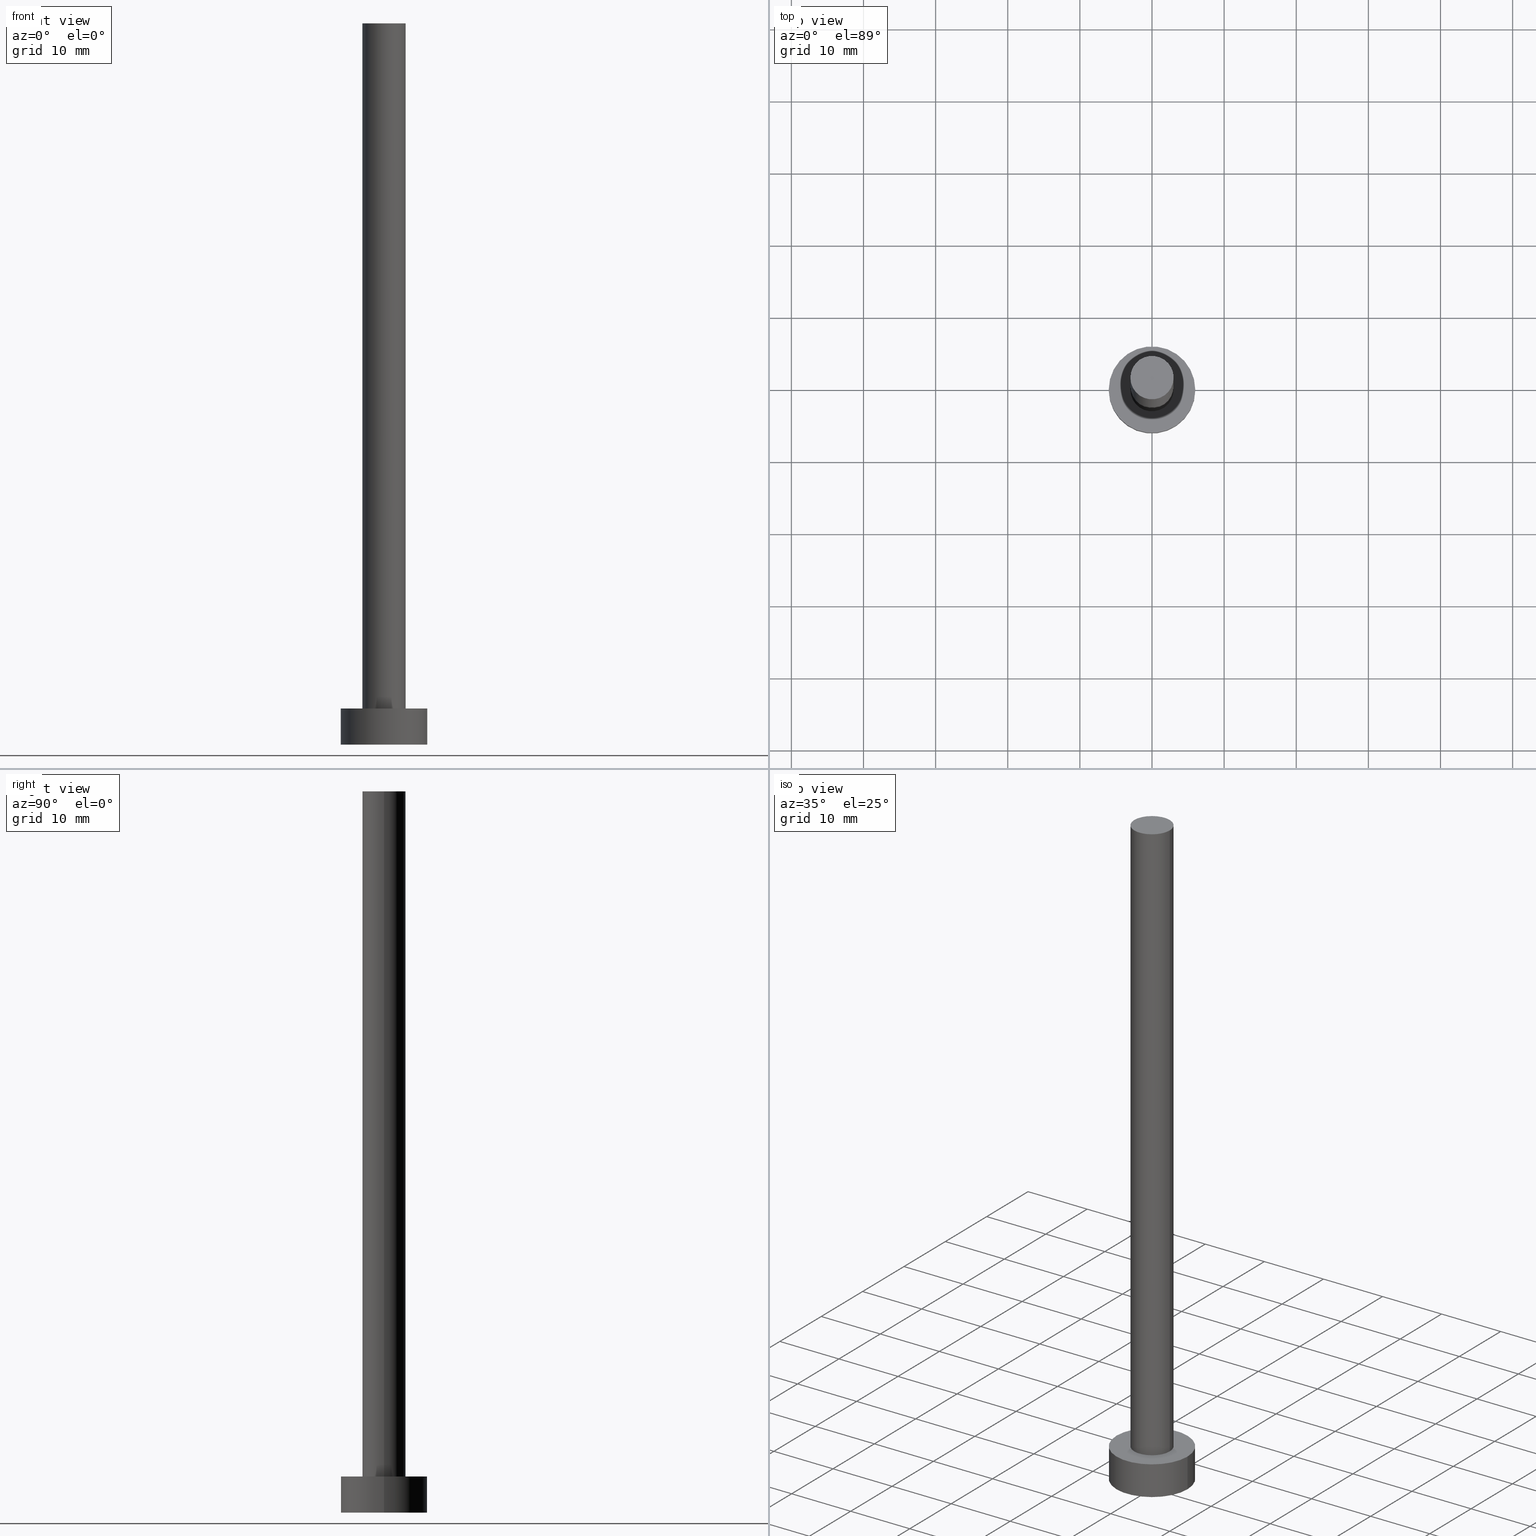
[diagram: canonical four-view strip — front | top / right | iso, engineering-drawing reading convention]
A machine part, canonical four-view strip (front | top / right | iso — engineering-drawing reading convention). The complete STEP part file that produces these views, byte-faithful:
ISO-10303-21;
HEADER;
FILE_DESCRIPTION (( 'STEP AP203' ),
    '1' );
FILE_NAME ('02a0.STEP',
    '2023-02-13T12:38:48',
    ( '' ),
    ( '' ),
    'SwSTEP 2.0',
    'SolidWorks 2019',
    '' );
FILE_SCHEMA (( 'CONFIG_CONTROL_DESIGN' ));
ENDSEC;

DATA;
#1 = CC_DESIGN_PERSON_AND_ORGANIZATION_ASSIGNMENT ( #136, #132, ( #93 ) ) ;
#2 = APPROVAL_PERSON_ORGANIZATION ( #45, #206, #94 ) ;
#3 = PERSON_AND_ORGANIZATION_ROLE ( 'creator' ) ;
#4 = CALENDAR_DATE ( 2023, 13, 2 ) ;
#5 = APPROVAL_DATE_TIME ( #183, #206 ) ;
#6 = PERSON_AND_ORGANIZATION_ROLE ( 'creator' ) ;
#7 = PRODUCT_DEFINITION_SHAPE ( 'NONE', 'NONE',  #54 ) ;
#8 = ADVANCED_FACE ( 'NONE', ( #220 ), #176, .T. ) ;
#9 = PLANE ( 'NONE',  #204 ) ;
#10 = VERTEX_POINT ( 'NONE', #148 ) ;
#11 = CYLINDRICAL_SURFACE ( 'NONE', #96, 6.000000000000000888 ) ;
#12 = ORIENTED_EDGE ( 'NONE', *, *, #174, .F. ) ;
#13 = LOCAL_TIME ( 13, 38, 48.00000000000000000, #243 ) ;
#14 = DIRECTION ( 'NONE',  ( 0.000000000000000000, 0.000000000000000000, 1.000000000000000000 ) ) ;
#15 = ORIENTED_EDGE ( 'NONE', *, *, #32, .F. ) ;
#16 = FACE_OUTER_BOUND ( 'NONE', #84, .T. ) ;
#17 = VERTEX_POINT ( 'NONE', #88 ) ;
#18 = CC_DESIGN_PERSON_AND_ORGANIZATION_ASSIGNMENT ( #74, #3, ( #149 ) ) ;
#19 = FACE_OUTER_BOUND ( 'NONE', #249, .T. ) ;
#20 = DIRECTION ( 'NONE',  ( -0.000000000000000000, -0.000000000000000000, -1.000000000000000000 ) ) ;
#21 = CIRCLE ( 'NONE', #91, 6.000000000000000888 ) ;
#22 = CIRCLE ( 'NONE', #208, 6.000000000000000888 ) ;
#23 = CALENDAR_DATE ( 2023, 13, 2 ) ;
#24 = UNCERTAINTY_MEASURE_WITH_UNIT (LENGTH_MEASURE( 1.000000000000000082E-05 ), #130, 'distance_accuracy_value', 'NONE');
#25 = COORDINATED_UNIVERSAL_TIME_OFFSET ( 1, 0, .AHEAD. ) ;
#26 = CIRCLE ( 'NONE', #180, 3.000000000000000444 ) ;
#27 = LINE ( 'NONE', #252, #142 ) ;
#28 = ORIENTED_EDGE ( 'NONE', *, *, #200, .T. ) ;
#29 = LOCAL_TIME ( 13, 38, 48.00000000000000000, #95 ) ;
#30 = DIRECTION ( 'NONE',  ( -0.000000000000000000, -0.000000000000000000, -1.000000000000000000 ) ) ;
#31 = CARTESIAN_POINT ( 'NONE',  ( 6.000000000000000888, 7.347880794884120722E-16, 0.000000000000000000 ) ) ;
#32 = EDGE_CURVE ( 'NONE', #202, #49, #178, .T. ) ;
#33 = DIRECTION ( 'NONE',  ( -0.000000000000000000, -0.000000000000000000, -1.000000000000000000 ) ) ;
#34 = LINE ( 'NONE', #108, #44 ) ;
#35 = APPLICATION_PROTOCOL_DEFINITION ( 'international standard', 'config_control_design', 1994, #100 ) ;
#36 = DIRECTION ( 'NONE',  ( -1.000000000000000000, 0.000000000000000000, 0.000000000000000000 ) ) ;
#37 = AXIS2_PLACEMENT_3D ( 'NONE', #50, #55, #164 ) ;
#38 = PERSON_AND_ORGANIZATION ( #150, #221 ) ;
#39 = CC_DESIGN_SECURITY_CLASSIFICATION ( #93, ( #149 ) ) ;
#40 = EDGE_CURVE ( 'NONE', #49, #126, #162, .T. ) ;
#41 = PERSON_AND_ORGANIZATION ( #150, #221 ) ;
#42 = APPROVAL_DATE_TIME ( #97, #244 ) ;
#43 = AXIS2_PLACEMENT_3D ( 'NONE', #112, #68, #219 ) ;
#44 = VECTOR ( 'NONE', #141, 1000.000000000000000 ) ;
#45 = PERSON_AND_ORGANIZATION ( #150, #221 ) ;
#46 = COORDINATED_UNIVERSAL_TIME_OFFSET ( 1, 0, .AHEAD. ) ;
#47 = DIRECTION ( 'NONE',  ( 1.000000000000000000, 0.000000000000000000, -0.000000000000000000 ) ) ;
#48 = CARTESIAN_POINT ( 'NONE',  ( 0.000000000000000000, 0.000000000000000000, 100.0000000000000000 ) ) ;
#49 = VERTEX_POINT ( 'NONE', #237 ) ;
#50 = CARTESIAN_POINT ( 'NONE',  ( 0.000000000000000000, 0.000000000000000000, 5.000000000000000000 ) ) ;
#51 = ORIENTED_EDGE ( 'NONE', *, *, #214, .F. ) ;
#52 = DIRECTION ( 'NONE',  ( 0.000000000000000000, 0.000000000000000000, 1.000000000000000000 ) ) ;
#53 = FACE_OUTER_BOUND ( 'NONE', #251, .T. ) ;
#54 = PRODUCT_DEFINITION ( 'NEZN�M�', '', #149, #110 ) ;
#55 = DIRECTION ( 'NONE',  ( 0.000000000000000000, 0.000000000000000000, 1.000000000000000000 ) ) ;
#56 = DIRECTION ( 'NONE',  ( -0.000000000000000000, -0.000000000000000000, -1.000000000000000000 ) ) ;
#57 = DATE_AND_TIME ( #240, #241 ) ;
#58 = SECURITY_CLASSIFICATION_LEVEL ( 'unclassified' ) ;
#59 = DIRECTION ( 'NONE',  ( 1.000000000000000000, 0.000000000000000000, 0.000000000000000000 ) ) ;
#60 = AXIS2_PLACEMENT_3D ( 'NONE', #222, #20, #36 ) ;
#61 = ORIENTED_EDGE ( 'NONE', *, *, #92, .T. ) ;
#62 = ADVANCED_FACE ( 'NONE', ( #53 ), #9, .T. ) ;
#63 = FACE_OUTER_BOUND ( 'NONE', #199, .T. ) ;
#64 = ORIENTED_EDGE ( 'NONE', *, *, #155, .F. ) ;
#65 = LOCAL_TIME ( 13, 38, 48.00000000000000000, #187 ) ;
#66 = EDGE_LOOP ( 'NONE', ( #15, #190, #28, #175 ) ) ;
#67 = CARTESIAN_POINT ( 'NONE',  ( 0.000000000000000000, 0.000000000000000000, 5.000000000000000000 ) ) ;
#68 = DIRECTION ( 'NONE',  ( 0.000000000000000000, 0.000000000000000000, 1.000000000000000000 ) ) ;
#69 = CARTESIAN_POINT ( 'NONE',  ( 0.000000000000000000, 0.000000000000000000, 100.0000000000000000 ) ) ;
#70 = MANIFOLD_SOLID_BREP ( 'P�idat vysunut�m3', #239 ) ;
#71 = CIRCLE ( 'NONE', #226, 3.000000000000000444 ) ;
#72 = APPROVAL_STATUS ( 'not_yet_approved' ) ;
#73 = DATE_TIME_ROLE ( 'classification_date' ) ;
#74 = PERSON_AND_ORGANIZATION ( #150, #221 ) ;
#75 = MECHANICAL_CONTEXT ( 'NONE', #100, 'mechanical' ) ;
#76 = CIRCLE ( 'NONE', #37, 6.000000000000000888 ) ;
#77 = PERSON_AND_ORGANIZATION ( #150, #221 ) ;
#78 = VECTOR ( 'NONE', #30, 1000.000000000000000 ) ;
#79 = DIRECTION ( 'NONE',  ( 1.000000000000000000, 0.000000000000000000, -0.000000000000000000 ) ) ;
#80 = APPLICATION_CONTEXT ( 'configuration controlled 3d designs of mechanical parts and assemblies' ) ;
#81 = EDGE_CURVE ( 'NONE', #10, #202, #26, .T. ) ;
#82 = DIRECTION ( 'NONE',  ( 0.000000000000000000, 0.000000000000000000, 1.000000000000000000 ) ) ;
#83 = CARTESIAN_POINT ( 'NONE',  ( 0.000000000000000000, 0.000000000000000000, 5.000000000000000000 ) ) ;
#84 = EDGE_LOOP ( 'NONE', ( #172, #64, #205, #231 ) ) ;
#85 = DIRECTION ( 'NONE',  ( -1.000000000000000000, 0.000000000000000000, 0.000000000000000000 ) ) ;
#86 = DIRECTION ( 'NONE',  ( 1.000000000000000000, 0.000000000000000000, 0.000000000000000000 ) ) ;
#87 = ORIENTED_EDGE ( 'NONE', *, *, #174, .T. ) ;
#88 = CARTESIAN_POINT ( 'NONE',  ( -6.000000000000000888, 0.000000000000000000, 0.000000000000000000 ) ) ;
#89 = PRODUCT_RELATED_PRODUCT_CATEGORY ( 'detail', '', ( #188 ) ) ;
#90 = DIRECTION ( 'NONE',  ( -1.000000000000000000, 0.000000000000000000, 0.000000000000000000 ) ) ;
#91 = AXIS2_PLACEMENT_3D ( 'NONE', #250, #218, #107 ) ;
#92 = EDGE_CURVE ( 'NONE', #118, #217, #76, .T. ) ;
#93 = SECURITY_CLASSIFICATION ( '', '', #58 ) ;
#94 = APPROVAL_ROLE ( '' ) ;
#95 = COORDINATED_UNIVERSAL_TIME_OFFSET ( 1, 0, .AHEAD. ) ;
#96 = AXIS2_PLACEMENT_3D ( 'NONE', #216, #201, #166 ) ;
#97 = DATE_AND_TIME ( #242, #13 ) ;
#98 = APPROVAL_PERSON_ORGANIZATION ( #185, #244, #189 ) ;
#99 = EDGE_CURVE ( 'NONE', #126, #49, #71, .T. ) ;
#100 = APPLICATION_CONTEXT ( 'configuration controlled 3d designs of mechanical parts and assemblies' ) ;
#101 = ORIENTED_EDGE ( 'NONE', *, *, #99, .F. ) ;
#102 = APPROVAL ( #229, 'NEUR�EN�' ) ;
#103 = DIRECTION ( 'NONE',  ( 0.000000000000000000, 0.000000000000000000, 1.000000000000000000 ) ) ;
#104 = DATE_AND_TIME ( #168, #127 ) ;
#105 = FACE_OUTER_BOUND ( 'NONE', #66, .T. ) ;
#106 = DIRECTION ( 'NONE',  ( -0.000000000000000000, -0.000000000000000000, -1.000000000000000000 ) ) ;
#107 = DIRECTION ( 'NONE',  ( 1.000000000000000000, 0.000000000000000000, 0.000000000000000000 ) ) ;
#108 = CARTESIAN_POINT ( 'NONE',  ( 6.000000000000000888, 7.347880794884120722E-16, 5.000000000000000000 ) ) ;
#109 = CARTESIAN_POINT ( 'NONE',  ( 3.000000000000000444, 3.673940397442060361E-16, 100.0000000000000000 ) ) ;
#110 = DESIGN_CONTEXT ( 'detailed design', #80, 'design' ) ;
#111 = CC_DESIGN_DATE_AND_TIME_ASSIGNMENT ( #211, #224, ( #54 ) ) ;
#112 = CARTESIAN_POINT ( 'NONE',  ( 0.000000000000000000, 0.000000000000000000, 5.000000000000000000 ) ) ;
#113 =( NAMED_UNIT ( * ) SI_UNIT ( $, .STERADIAN. ) SOLID_ANGLE_UNIT ( ) );
#114 = EDGE_CURVE ( 'NONE', #202, #10, #138, .T. ) ;
#115 = CC_DESIGN_DATE_AND_TIME_ASSIGNMENT ( #57, #73, ( #93 ) ) ;
#116 = AXIS2_PLACEMENT_3D ( 'NONE', #181, #209, #225 ) ;
#117 = CC_DESIGN_APPROVAL ( #206, ( #149 ) ) ;
#118 = VERTEX_POINT ( 'NONE', #144 ) ;
#119 = CC_DESIGN_PERSON_AND_ORGANIZATION_ASSIGNMENT ( #38, #131, ( #188 ) ) ;
#120 = LINE ( 'NONE', #215, #78 ) ;
#121 = FACE_OUTER_BOUND ( 'NONE', #153, .T. ) ;
#122 = DIRECTION ( 'NONE',  ( 1.000000000000000000, 0.000000000000000000, 0.000000000000000000 ) ) ;
#123 = CC_DESIGN_PERSON_AND_ORGANIZATION_ASSIGNMENT ( #207, #157, ( #149 ) ) ;
#124 = AXIS2_PLACEMENT_3D ( 'NONE', #128, #247, #230 ) ;
#125 = DIRECTION ( 'NONE',  ( 0.000000000000000000, 0.000000000000000000, 1.000000000000000000 ) ) ;
#126 = VERTEX_POINT ( 'NONE', #232 ) ;
#127 = LOCAL_TIME ( 13, 38, 48.00000000000000000, #46 ) ;
#128 = CARTESIAN_POINT ( 'NONE',  ( 0.000000000000000000, 0.000000000000000000, 5.000000000000000000 ) ) ;
#129 = AXIS2_PLACEMENT_3D ( 'NONE', #67, #223, #177 ) ;
#130 =( LENGTH_UNIT ( ) NAMED_UNIT ( * ) SI_UNIT ( .MILLI., .METRE. ) );
#131 = PERSON_AND_ORGANIZATION_ROLE ( 'design_owner' ) ;
#132 = PERSON_AND_ORGANIZATION_ROLE ( 'classification_officer' ) ;
#133 = ADVANCED_FACE ( 'NONE', ( #121 ), #246, .T. ) ;
#134 = APPROVAL_STATUS ( 'not_yet_approved' ) ;
#135 = AXIS2_PLACEMENT_3D ( 'NONE', #48, #33, #85 ) ;
#136 = PERSON_AND_ORGANIZATION ( #150, #221 ) ;
#137 = ORIENTED_EDGE ( 'NONE', *, *, #114, .T. ) ;
#138 = CIRCLE ( 'NONE', #165, 3.000000000000000444 ) ;
#139 = PLANE ( 'NONE',  #213 ) ;
#140 = SHAPE_DEFINITION_REPRESENTATION ( #7, #182 ) ;
#141 = DIRECTION ( 'NONE',  ( -0.000000000000000000, -0.000000000000000000, -1.000000000000000000 ) ) ;
#142 = VECTOR ( 'NONE', #106, 1000.000000000000000 ) ;
#143 = DIRECTION ( 'NONE',  ( 1.000000000000000000, 0.000000000000000000, 0.000000000000000000 ) ) ;
#144 = CARTESIAN_POINT ( 'NONE',  ( 6.000000000000000888, 7.347880794884120722E-16, 5.000000000000000000 ) ) ;
#145 = VECTOR ( 'NONE', #234, 1000.000000000000000 ) ;
#146 = VERTEX_POINT ( 'NONE', #31 ) ;
#147 = CARTESIAN_POINT ( 'NONE',  ( 0.000000000000000000, 0.000000000000000000, 0.000000000000000000 ) ) ;
#148 = CARTESIAN_POINT ( 'NONE',  ( -3.000000000000000444, 0.000000000000000000, 100.0000000000000000 ) ) ;
#149 = PRODUCT_DEFINITION_FORMATION_WITH_SPECIFIED_SOURCE ( 'LIBOVOLN�', '', #188, .NOT_KNOWN. ) ;
#150 = PERSON ( 'NEUR�EN�', 'NEUR�EN�', 'NEUR�EN�', ('NEUR�EN�'), ('NEUR�EN�'), ('NEUR�EN�') ) ;
#151 = EDGE_LOOP ( 'NONE', ( #163, #245, #87, #51 ) ) ;
#152 = ORIENTED_EDGE ( 'NONE', *, *, #200, .F. ) ;
#153 = EDGE_LOOP ( 'NONE', ( #254, #170, #212, #152 ) ) ;
#154 = CC_DESIGN_APPROVAL ( #244, ( #54 ) ) ;
#155 = EDGE_CURVE ( 'NONE', #217, #118, #196, .T. ) ;
#156 = FACE_BOUND ( 'NONE', #255, .T. ) ;
#157 = PERSON_AND_ORGANIZATION_ROLE ( 'design_supplier' ) ;
#158 = CC_DESIGN_PERSON_AND_ORGANIZATION_ASSIGNMENT ( #77, #6, ( #54 ) ) ;
#159 = AXIS2_PLACEMENT_3D ( 'NONE', #69, #56, #90 ) ;
#160 = APPROVAL_PERSON_ORGANIZATION ( #41, #102, #193 ) ;
#161 = APPLICATION_PROTOCOL_DEFINITION ( 'international standard', 'config_control_design', 1994, #80 ) ;
#162 = CIRCLE ( 'NONE', #43, 3.000000000000000444 ) ;
#163 = ORIENTED_EDGE ( 'NONE', *, *, #92, .F. ) ;
#164 = DIRECTION ( 'NONE',  ( 1.000000000000000000, 0.000000000000000000, 0.000000000000000000 ) ) ;
#165 = AXIS2_PLACEMENT_3D ( 'NONE', #197, #125, #59 ) ;
#166 = DIRECTION ( 'NONE',  ( -1.000000000000000000, 0.000000000000000000, 0.000000000000000000 ) ) ;
#167 = EDGE_CURVE ( 'NONE', #17, #146, #21, .T. ) ;
#168 = CALENDAR_DATE ( 2023, 13, 2 ) ;
#169 = CARTESIAN_POINT ( 'NONE',  ( 3.000000000000000444, 3.673940397442060361E-16, 100.0000000000000000 ) ) ;
#170 = ORIENTED_EDGE ( 'NONE', *, *, #32, .T. ) ;
#171 = DIRECTION ( 'NONE',  ( 0.000000000000000000, 0.000000000000000000, 1.000000000000000000 ) ) ;
#172 = ORIENTED_EDGE ( 'NONE', *, *, #184, .F. ) ;
#173 = APPROVAL_DATE_TIME ( #104, #102 ) ;
#174 = EDGE_CURVE ( 'NONE', #146, #17, #22, .T. ) ;
#175 = ORIENTED_EDGE ( 'NONE', *, *, #99, .T. ) ;
#176 = CYLINDRICAL_SURFACE ( 'NONE', #60, 6.000000000000000888 ) ;
#177 = DIRECTION ( 'NONE',  ( 1.000000000000000000, 0.000000000000000000, -0.000000000000000000 ) ) ;
#178 = LINE ( 'NONE', #109, #145 ) ;
#179 = PLANE ( 'NONE',  #129 ) ;
#180 = AXIS2_PLACEMENT_3D ( 'NONE', #227, #52, #143 ) ;
#181 = CARTESIAN_POINT ( 'NONE',  ( 0.000000000000000000, 0.000000000000000000, 0.000000000000000000 ) ) ;
#182 = ADVANCED_BREP_SHAPE_REPRESENTATION ( '02a0', ( #70, #116 ), #186 ) ;
#183 = DATE_AND_TIME ( #4, #65 ) ;
#184 = EDGE_CURVE ( 'NONE', #118, #146, #34, .T. ) ;
#185 = PERSON_AND_ORGANIZATION ( #150, #221 ) ;
#186 =( GEOMETRIC_REPRESENTATION_CONTEXT ( 3 ) GLOBAL_UNCERTAINTY_ASSIGNED_CONTEXT ( ( #24 ) ) GLOBAL_UNIT_ASSIGNED_CONTEXT ( ( #130, #203, #113 ) ) REPRESENTATION_CONTEXT ( 'NONE', 'WORKASPACE' ) );
#187 = COORDINATED_UNIVERSAL_TIME_OFFSET ( 1, 0, .AHEAD. ) ;
#188 = PRODUCT ( '02a0', '02a0', '', ( #75 ) ) ;
#189 = APPROVAL_ROLE ( '' ) ;
#190 = ORIENTED_EDGE ( 'NONE', *, *, #81, .F. ) ;
#191 = CARTESIAN_POINT ( 'NONE',  ( 0.000000000000000000, 0.000000000000000000, 100.0000000000000000 ) ) ;
#192 = ORIENTED_EDGE ( 'NONE', *, *, #81, .T. ) ;
#193 = APPROVAL_ROLE ( '' ) ;
#194 = CYLINDRICAL_SURFACE ( 'NONE', #159, 3.000000000000000444 ) ;
#195 = ADVANCED_FACE ( 'NONE', ( #16 ), #11, .T. ) ;
#196 = CIRCLE ( 'NONE', #124, 6.000000000000000888 ) ;
#197 = CARTESIAN_POINT ( 'NONE',  ( 0.000000000000000000, 0.000000000000000000, 100.0000000000000000 ) ) ;
#198 = CARTESIAN_POINT ( 'NONE',  ( 0.000000000000000000, 0.000000000000000000, 0.000000000000000000 ) ) ;
#199 = EDGE_LOOP ( 'NONE', ( #228, #12 ) ) ;
#200 = EDGE_CURVE ( 'NONE', #10, #126, #27, .T. ) ;
#201 = DIRECTION ( 'NONE',  ( -0.000000000000000000, -0.000000000000000000, -1.000000000000000000 ) ) ;
#202 = VERTEX_POINT ( 'NONE', #169 ) ;
#203 =( NAMED_UNIT ( * ) PLANE_ANGLE_UNIT ( ) SI_UNIT ( $, .RADIAN. ) );
#204 = AXIS2_PLACEMENT_3D ( 'NONE', #191, #14, #79 ) ;
#205 = ORIENTED_EDGE ( 'NONE', *, *, #214, .T. ) ;
#206 = APPROVAL ( #134, 'NEUR�EN�' ) ;
#207 = PERSON_AND_ORGANIZATION ( #150, #221 ) ;
#208 = AXIS2_PLACEMENT_3D ( 'NONE', #198, #82, #86 ) ;
#209 = DIRECTION ( 'NONE',  ( 0.000000000000000000, 0.000000000000000000, 1.000000000000000000 ) ) ;
#210 = ADVANCED_FACE ( 'NONE', ( #63 ), #139, .F. ) ;
#211 = DATE_AND_TIME ( #23, #29 ) ;
#212 = ORIENTED_EDGE ( 'NONE', *, *, #40, .T. ) ;
#213 = AXIS2_PLACEMENT_3D ( 'NONE', #147, #103, #47 ) ;
#214 = EDGE_CURVE ( 'NONE', #217, #17, #120, .T. ) ;
#215 = CARTESIAN_POINT ( 'NONE',  ( -6.000000000000000888, 0.000000000000000000, 5.000000000000000000 ) ) ;
#216 = CARTESIAN_POINT ( 'NONE',  ( 0.000000000000000000, 0.000000000000000000, 5.000000000000000000 ) ) ;
#217 = VERTEX_POINT ( 'NONE', #248 ) ;
#218 = DIRECTION ( 'NONE',  ( 0.000000000000000000, 0.000000000000000000, 1.000000000000000000 ) ) ;
#219 = DIRECTION ( 'NONE',  ( 1.000000000000000000, 0.000000000000000000, 0.000000000000000000 ) ) ;
#220 = FACE_OUTER_BOUND ( 'NONE', #151, .T. ) ;
#221 = ORGANIZATION ( 'NEUR�EN�', 'NEUR�EN�', '' ) ;
#222 = CARTESIAN_POINT ( 'NONE',  ( 0.000000000000000000, 0.000000000000000000, 5.000000000000000000 ) ) ;
#223 = DIRECTION ( 'NONE',  ( 0.000000000000000000, 0.000000000000000000, 1.000000000000000000 ) ) ;
#224 = DATE_TIME_ROLE ( 'creation_date' ) ;
#225 = DIRECTION ( 'NONE',  ( 1.000000000000000000, 0.000000000000000000, 0.000000000000000000 ) ) ;
#226 = AXIS2_PLACEMENT_3D ( 'NONE', #83, #171, #122 ) ;
#227 = CARTESIAN_POINT ( 'NONE',  ( 0.000000000000000000, 0.000000000000000000, 100.0000000000000000 ) ) ;
#228 = ORIENTED_EDGE ( 'NONE', *, *, #167, .F. ) ;
#229 = APPROVAL_STATUS ( 'not_yet_approved' ) ;
#230 = DIRECTION ( 'NONE',  ( 1.000000000000000000, 0.000000000000000000, 0.000000000000000000 ) ) ;
#231 = ORIENTED_EDGE ( 'NONE', *, *, #167, .T. ) ;
#232 = CARTESIAN_POINT ( 'NONE',  ( -3.000000000000000444, 0.000000000000000000, 5.000000000000000000 ) ) ;
#233 = CC_DESIGN_APPROVAL ( #102, ( #93 ) ) ;
#234 = DIRECTION ( 'NONE',  ( -0.000000000000000000, -0.000000000000000000, -1.000000000000000000 ) ) ;
#235 = ORIENTED_EDGE ( 'NONE', *, *, #155, .T. ) ;
#236 = ORIENTED_EDGE ( 'NONE', *, *, #40, .F. ) ;
#237 = CARTESIAN_POINT ( 'NONE',  ( 3.000000000000000444, 3.673940397442060361E-16, 5.000000000000000000 ) ) ;
#238 = ADVANCED_FACE ( 'NONE', ( #105 ), #194, .T. ) ;
#239 = CLOSED_SHELL ( 'NONE', ( #133, #8, #195, #253, #210, #238, #62 ) ) ;
#240 = CALENDAR_DATE ( 2023, 13, 2 ) ;
#241 = LOCAL_TIME ( 13, 38, 48.00000000000000000, #25 ) ;
#242 = CALENDAR_DATE ( 2023, 13, 2 ) ;
#243 = COORDINATED_UNIVERSAL_TIME_OFFSET ( 1, 0, .AHEAD. ) ;
#244 = APPROVAL ( #72, 'NEUR�EN�' ) ;
#245 = ORIENTED_EDGE ( 'NONE', *, *, #184, .T. ) ;
#246 = CYLINDRICAL_SURFACE ( 'NONE', #135, 3.000000000000000444 ) ;
#247 = DIRECTION ( 'NONE',  ( 0.000000000000000000, 0.000000000000000000, 1.000000000000000000 ) ) ;
#248 = CARTESIAN_POINT ( 'NONE',  ( -6.000000000000000888, 0.000000000000000000, 5.000000000000000000 ) ) ;
#249 = EDGE_LOOP ( 'NONE', ( #235, #61 ) ) ;
#250 = CARTESIAN_POINT ( 'NONE',  ( 0.000000000000000000, 0.000000000000000000, 0.000000000000000000 ) ) ;
#251 = EDGE_LOOP ( 'NONE', ( #192, #137 ) ) ;
#252 = CARTESIAN_POINT ( 'NONE',  ( -3.000000000000000444, 0.000000000000000000, 100.0000000000000000 ) ) ;
#253 = ADVANCED_FACE ( 'NONE', ( #156, #19 ), #179, .T. ) ;
#254 = ORIENTED_EDGE ( 'NONE', *, *, #114, .F. ) ;
#255 = EDGE_LOOP ( 'NONE', ( #101, #236 ) ) ;
ENDSEC;
END-ISO-10303-21;
